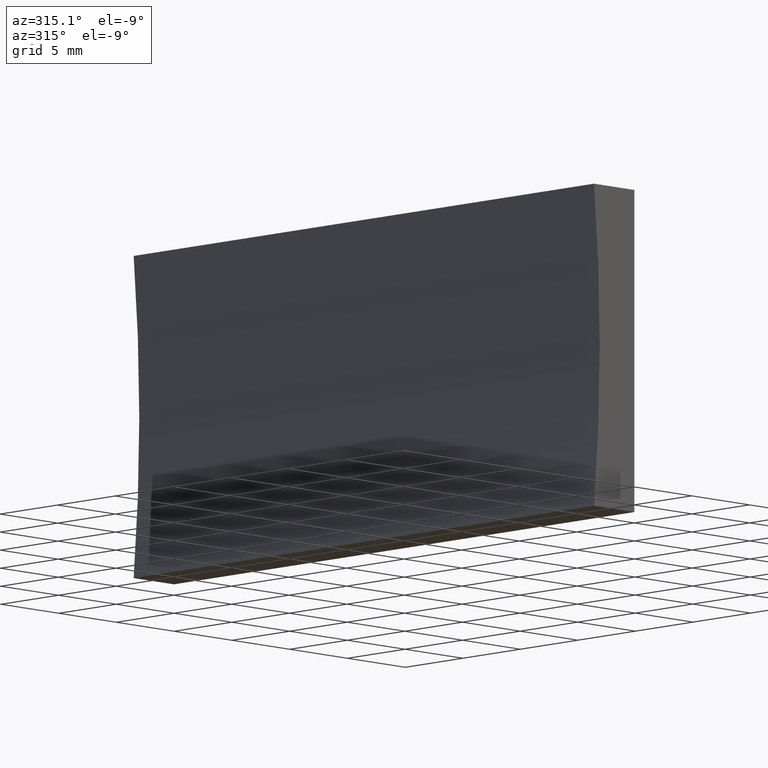
[diagram: clean part render]
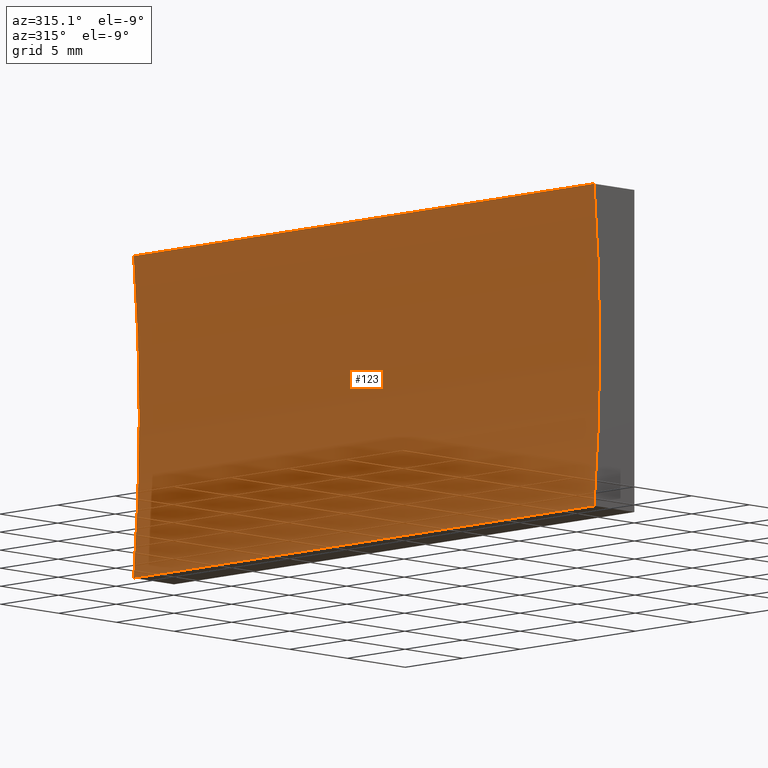
[diagram: same view with one face highlighted and labeled with its STEP entity id]
A machine part, auxiliary view. The second image highlights one B-rep face of the part: STEP entity #123.
In plain terms, the highlighted cylindrical surface (partial cylindrical patch) has radius 103.4 mm, axis along (-0, -1, -0).
Its self-contained STEP definition (entity closure, byte-faithful):
#2 = FACE_OUTER_BOUND ( 'NONE', #18, .T. ) ;
#4 = EDGE_CURVE ( 'NONE', #102, #168, #181, .T. ) ;
#8 = AXIS2_PLACEMENT_3D ( 'NONE', #128, #198, #110 ) ;
#14 = DIRECTION ( 'NONE',  ( -0.0000000000000000000, -1.000000000000000000, -0.0000000000000000000 ) ) ;
#17 = CIRCLE ( 'NONE', #22, 103.4000000000000200 ) ;
#18 = EDGE_LOOP ( 'NONE', ( #57, #190, #116, #90 ) ) ;
#19 = CIRCLE ( 'NONE', #8, 103.4000000000000200 ) ;
#22 = AXIS2_PLACEMENT_3D ( 'NONE', #70, #14, #197 ) ;
#26 = DIRECTION ( 'NONE',  ( -0.0000000000000000000, -1.000000000000000000, -0.0000000000000000000 ) ) ;
#29 = CARTESIAN_POINT ( 'NONE',  ( -3.484695015755795200, 40.00000000000000000, 20.00000000000000400 ) ) ;
#44 = AXIS2_PLACEMENT_3D ( 'NONE', #104, #149, #180 ) ;
#46 = CYLINDRICAL_SURFACE ( 'NONE', #44, 103.4000000000000200 ) ;
#51 = CARTESIAN_POINT ( 'NONE',  ( -3.484695015755795200, 40.00000000000000000, 20.00000000000000400 ) ) ;
#52 = CARTESIAN_POINT ( 'NONE',  ( -3.484695015755795200, 40.00000000000000000, -1.214306433183765000E-014 ) ) ;
#57 = ORIENTED_EDGE ( 'NONE', *, *, #88, .T. ) ;
#70 = CARTESIAN_POINT ( 'NONE',  ( -106.4000000000000100, 40.00000000000000000, 10.00000000000001600 ) ) ;
#79 = VECTOR ( 'NONE', #26, 1000.000000000000000 ) ;
#88 = EDGE_CURVE ( 'NONE', #97, #168, #19, .T. ) ;
#90 = ORIENTED_EDGE ( 'NONE', *, *, #115, .T. ) ;
#97 = VERTEX_POINT ( 'NONE', #158 ) ;
#102 = VERTEX_POINT ( 'NONE', #51 ) ;
#104 = CARTESIAN_POINT ( 'NONE',  ( -106.4000000000000100, 40.00000000000000000, 10.00000000000001600 ) ) ;
#110 = DIRECTION ( 'NONE',  ( 0.0000000000000000000, 0.0000000000000000000, 1.000000000000000000 ) ) ;
#115 = EDGE_CURVE ( 'NONE', #154, #97, #185, .T. ) ;
#116 = ORIENTED_EDGE ( 'NONE', *, *, #194, .F. ) ;
#119 = CARTESIAN_POINT ( 'NONE',  ( -3.484695015755795200, 40.00000000000000000, -1.214306433183765000E-014 ) ) ;
#123 = ADVANCED_FACE ( 'NONE', ( #2 ), #46, .F. ) ;
#128 = CARTESIAN_POINT ( 'NONE',  ( -106.4000000000000100, 0.0000000000000000000, 10.00000000000001600 ) ) ;
#139 = VECTOR ( 'NONE', #196, 1000.000000000000000 ) ;
#148 = CARTESIAN_POINT ( 'NONE',  ( -3.484695015755795200, 0.0000000000000000000, 20.00000000000000400 ) ) ;
#149 = DIRECTION ( 'NONE',  ( -0.0000000000000000000, -1.000000000000000000, -0.0000000000000000000 ) ) ;
#154 = VERTEX_POINT ( 'NONE', #52 ) ;
#158 = CARTESIAN_POINT ( 'NONE',  ( -3.484695015755795200, 0.0000000000000000000, -1.214306433183765000E-014 ) ) ;
#168 = VERTEX_POINT ( 'NONE', #148 ) ;
#180 = DIRECTION ( 'NONE',  ( 0.0000000000000000000, 0.0000000000000000000, -1.000000000000000000 ) ) ;
#181 = LINE ( 'NONE', #29, #79 ) ;
#185 = LINE ( 'NONE', #119, #139 ) ;
#190 = ORIENTED_EDGE ( 'NONE', *, *, #4, .F. ) ;
#194 = EDGE_CURVE ( 'NONE', #154, #102, #17, .T. ) ;
#196 = DIRECTION ( 'NONE',  ( -0.0000000000000000000, -1.000000000000000000, -0.0000000000000000000 ) ) ;
#197 = DIRECTION ( 'NONE',  ( 0.0000000000000000000, 0.0000000000000000000, 1.000000000000000000 ) ) ;
#198 = DIRECTION ( 'NONE',  ( -0.0000000000000000000, -1.000000000000000000, -0.0000000000000000000 ) ) ;